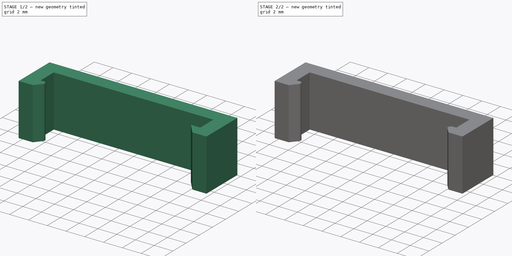
[diagram: build sequence overview — one tinted view per stage of 2, left to right]
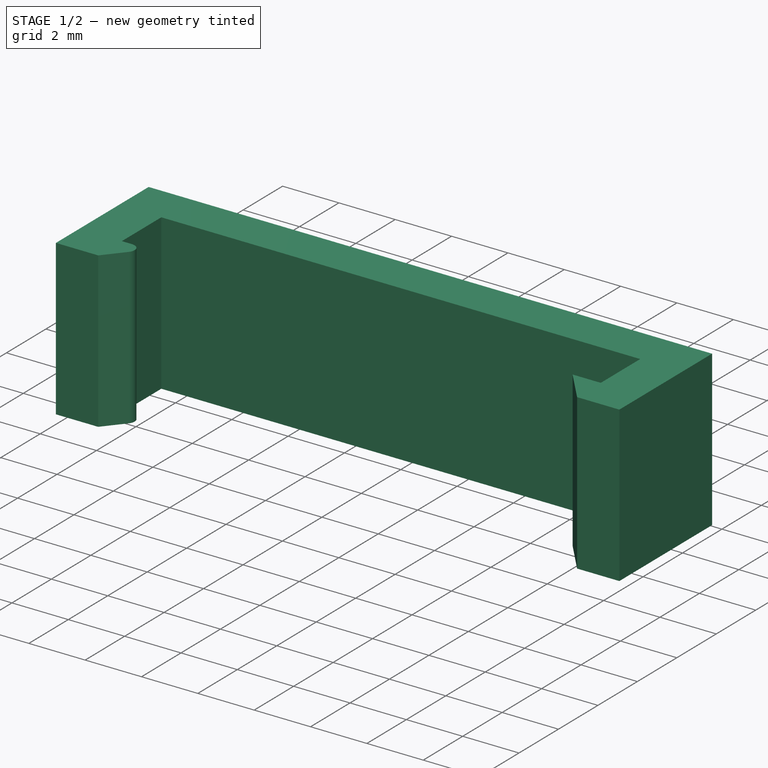
[diagram: stage 1 of 2 — iso view after this stage's code; geometry added in this stage tinted green]
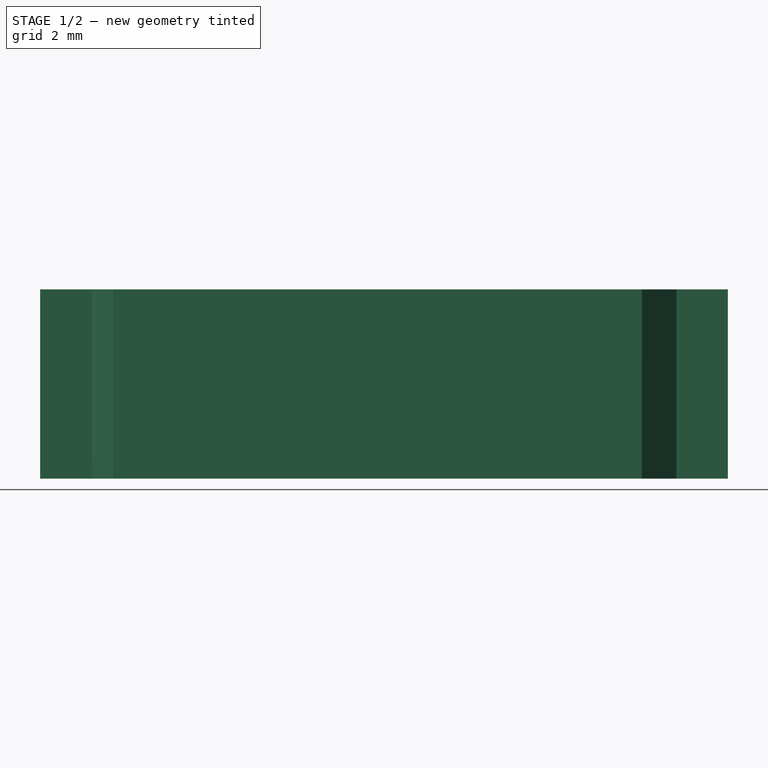
[diagram: stage 1 of 2 — front view after this stage's code; geometry added in this stage tinted green]
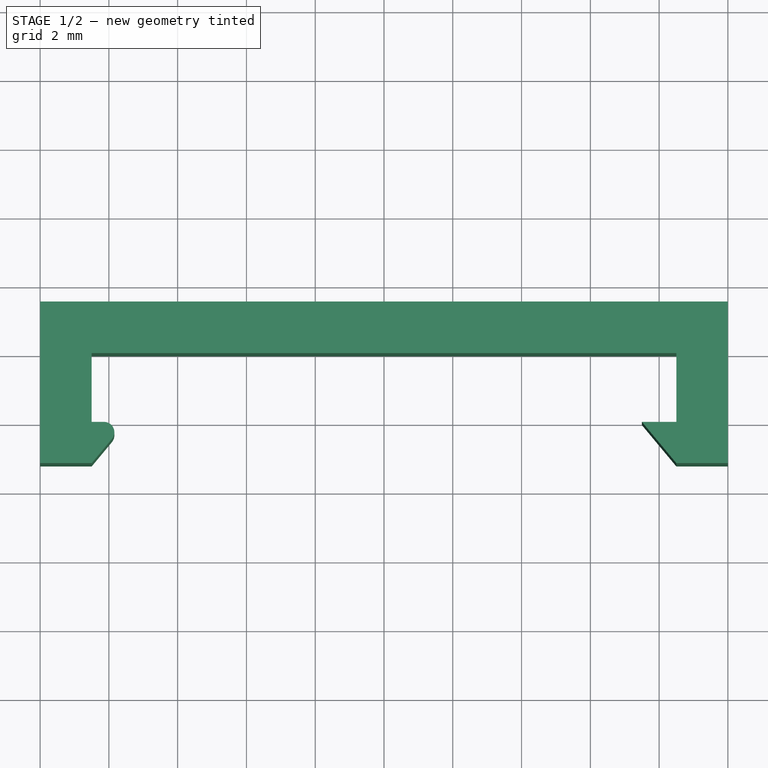
[diagram: stage 1 of 2 — top view after this stage's code; geometry added in this stage tinted green]
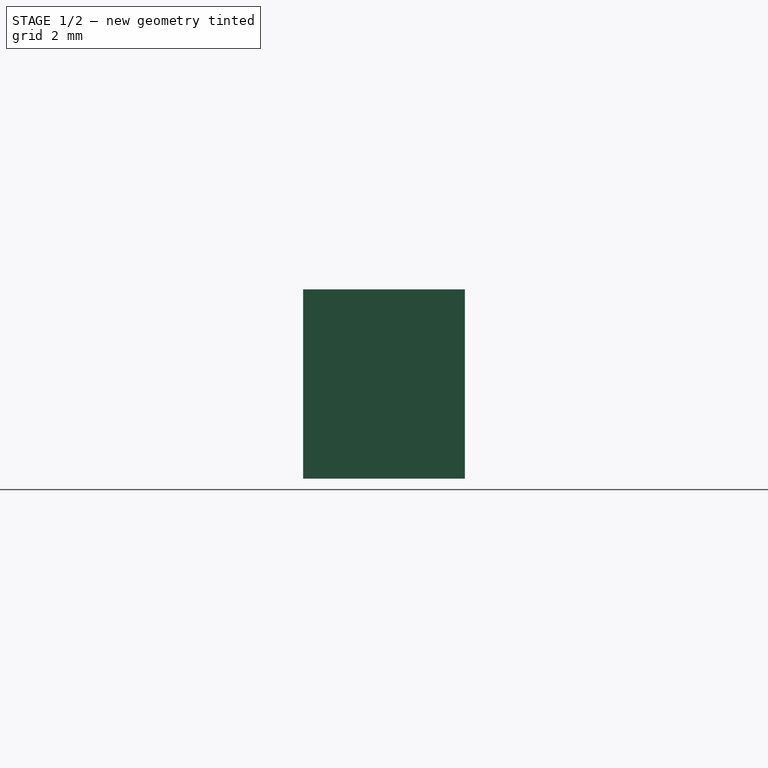
[diagram: stage 1 of 2 — right view after this stage's code; geometry added in this stage tinted green]
FCSTD DOCUMENT  (FreeCAD 0.17R13541 (Git))
Label: CableCareerCover
License: All rights reserved
LicenseURL: http://en.wikipedia.org/wiki/All_rights_reserved
objects: PartDesign::Fillet×2, Sketcher::SketchObject×1, PartDesign::Pad×1, PartDesign::Body×1
note: 6 computed .brp shape members not serialized (recipe doc carries the construction recipe); baked Part::Feature solids carry a one-line shape summary decoded from their .brp

FEATURE [Sketcher::SketchObject] Sketch
  MapMode = 5
  Support = -> [XY_Plane]
  sketch-geometry (12):
    g0: LineSegment StartX=-10 StartY=1.5 StartZ=0 EndX=10 EndY=1.5 EndZ=0
    g1: LineSegment StartX=10 StartY=1.5 StartZ=0 EndX=10 EndY=-3.2 EndZ=0
    g2: LineSegment StartX=10 StartY=-3.2 StartZ=0 EndX=8.5 EndY=-3.2 EndZ=0
    g3: LineSegment StartX=8.5 StartY=-3.2 StartZ=0 EndX=7.5 EndY=-2 EndZ=0
    g4: LineSegment StartX=7.5 StartY=-2 StartZ=0 EndX=8.5 EndY=-2 EndZ=0
    g5: LineSegment StartX=8.5 StartY=-2 StartZ=0 EndX=8.5 EndY=0 EndZ=0
    g6: LineSegment StartX=8.5 StartY=0 StartZ=0 EndX=-8.5 EndY=0 EndZ=0
    g7: LineSegment StartX=-8.5 StartY=0 StartZ=0 EndX=-8.5 EndY=-2 EndZ=0
    g8: LineSegment StartX=-8.5 StartY=-2 StartZ=0 EndX=-7.5 EndY=-2 EndZ=0
    g9: LineSegment StartX=-7.5 StartY=-2 StartZ=0 EndX=-8.5 EndY=-3.2 EndZ=0
    g10: LineSegment StartX=-8.5 StartY=-3.2 StartZ=0 EndX=-10 EndY=-3.2 EndZ=0
    g11: LineSegment StartX=-10 StartY=-3.2 StartZ=0 EndX=-10 EndY=1.5 EndZ=0
  constraints (36):
    c: Coincident(g0,g1)
    c: Coincident(g1,g2)
    c: Coincident(g2,g3)
    c: Coincident(g3,g4)
    c: Coincident(g4,g5)
    c: Coincident(g5,g6)
    c: Coincident(g6,g7)
    c: Coincident(g7,g8)
    c: Coincident(g8,g9)
    c: Coincident(g9,g10)
    c: Coincident(g10,g11)
    c: Coincident(g11,g0)
    c: Parallel(g0,g6)
    c: Parallel(g6,g8)
    c: Parallel(g8,g10)
    c: Parallel(g10,g4)
    c: Parallel(g4,g2)
    c: Parallel(g2,g-1)
    c: Parallel(g11,g7)
    c: Parallel(g7,g-2)
    c: Parallel(g-2,g5)
    c: Parallel(g5,g1)
    c: DistanceY(g7,g7) = 2
    c: DistanceY(g5,g5) = 2
    c: DistanceX(g0,g0) = 20
    c: DistanceY(g6,g0) = 1.5
    c: DistanceX(g8,g8) = 1
    c: DistanceX(g4,g4) = 1
    c: DistanceX(g0,g7) = 1.5
    c: DistanceX(g4,g0) = 1.5
    c: DistanceY(g1,g1) = 4.7
    c: DistanceY(g11,g11) = 4.7
    c: DistanceX(g10,g10) = 1.5
    c: DistanceX(g2,g2) = 1.5
    c: DistanceX(g0,g-1) = 10
    c: DistanceY(g-1,g0) = 1.5
FEATURE [PartDesign::Pad] Pad
  Length = 5.5
  Length2 = 100
  Profile = -> Sketch
  Type = 0
FEATURE [PartDesign::Fillet] Fillet
  Base = -> Pad [Edge26]
  BaseFeature = -> Pad
  Radius = 0.3
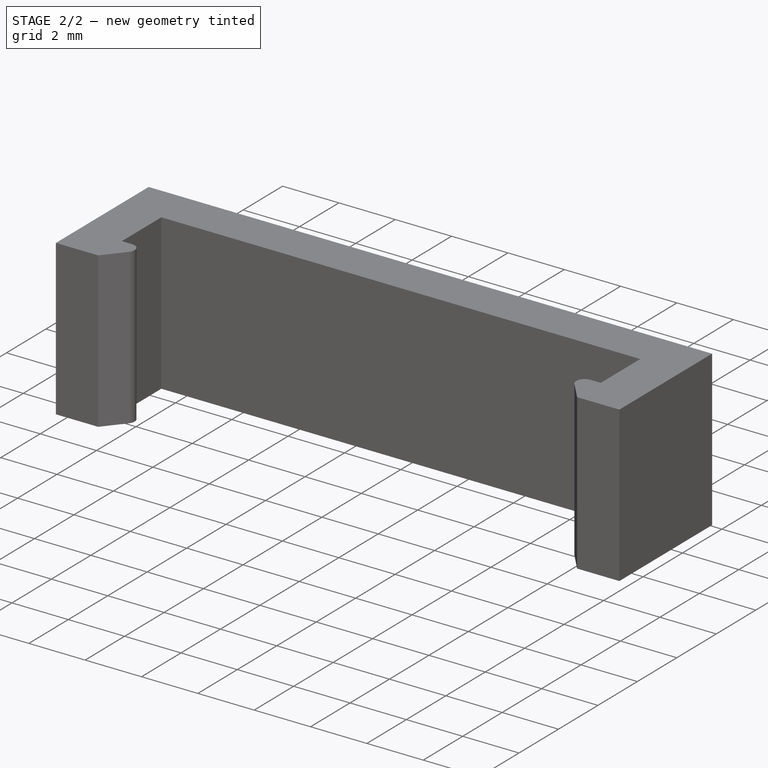
[diagram: stage 2 of 2 — iso view after this stage's code; geometry added in this stage tinted green]
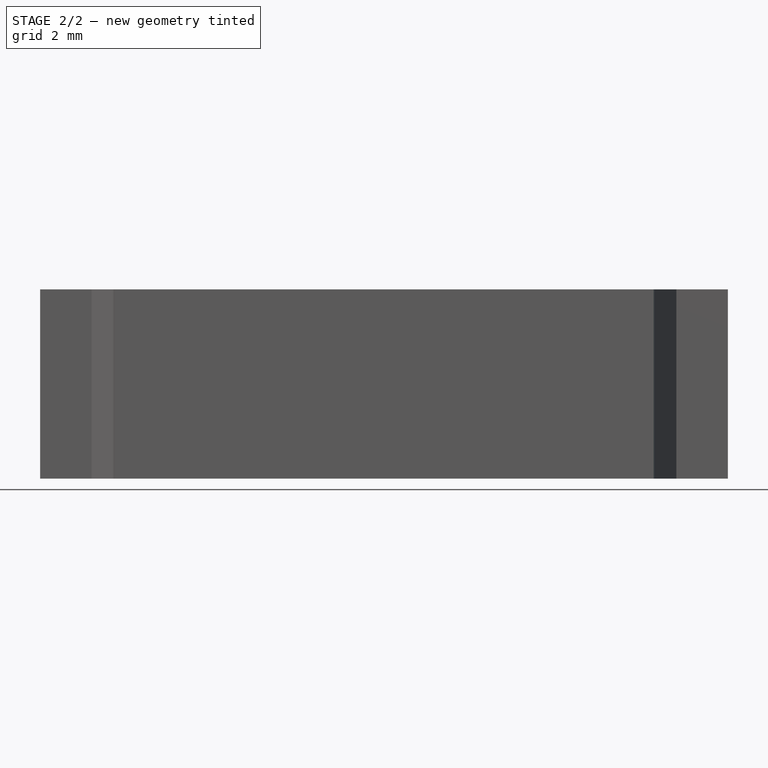
[diagram: stage 2 of 2 — front view after this stage's code; geometry added in this stage tinted green]
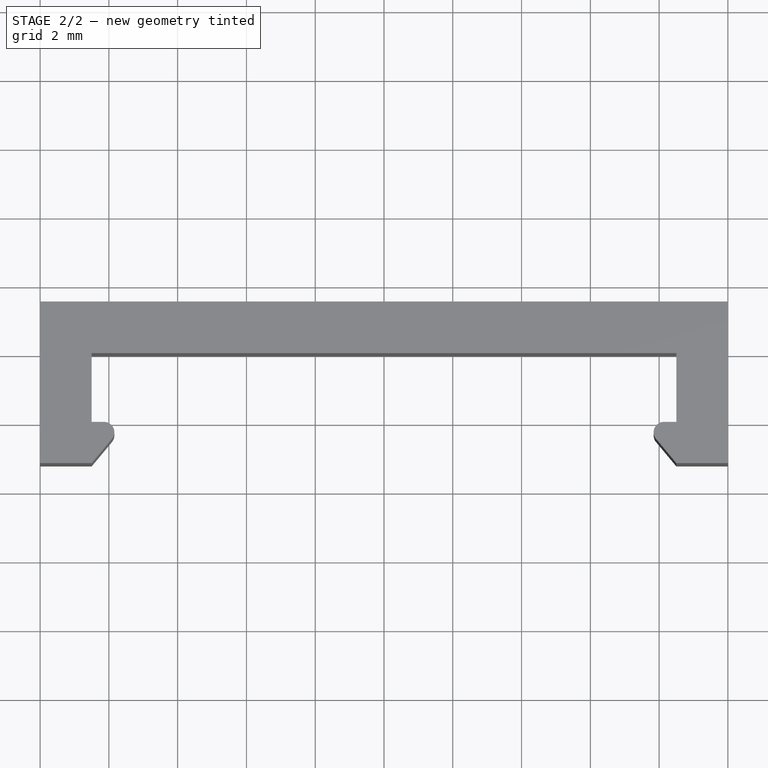
[diagram: stage 2 of 2 — top view after this stage's code; geometry added in this stage tinted green]
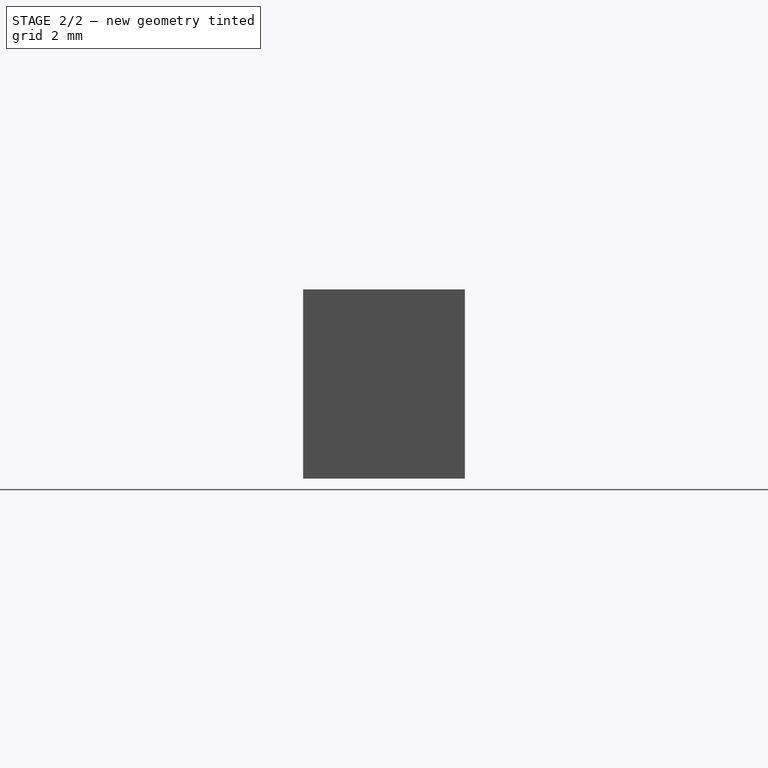
[diagram: stage 2 of 2 — right view after this stage's code; geometry added in this stage tinted green]
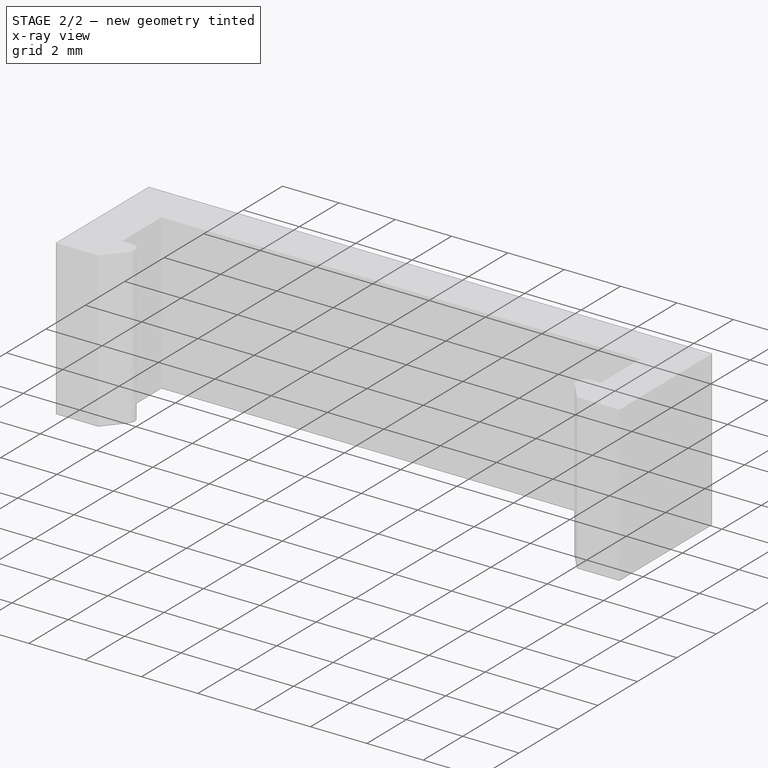
[diagram: stage 2 of 2 — x-ray composite at the iso view; earlier geometry ghosted, this stage's added geometry solid]
FEATURE [PartDesign::Fillet] Fillet001
  Base = -> Fillet [Edge36]
  BaseFeature = -> Fillet
  Radius = 0.3
FEATURE [PartDesign::Body] Body
  Group = -> [Sketch,Pad,Fillet,Fillet001]
  Origin = -> Origin
  Tip = -> Fillet001
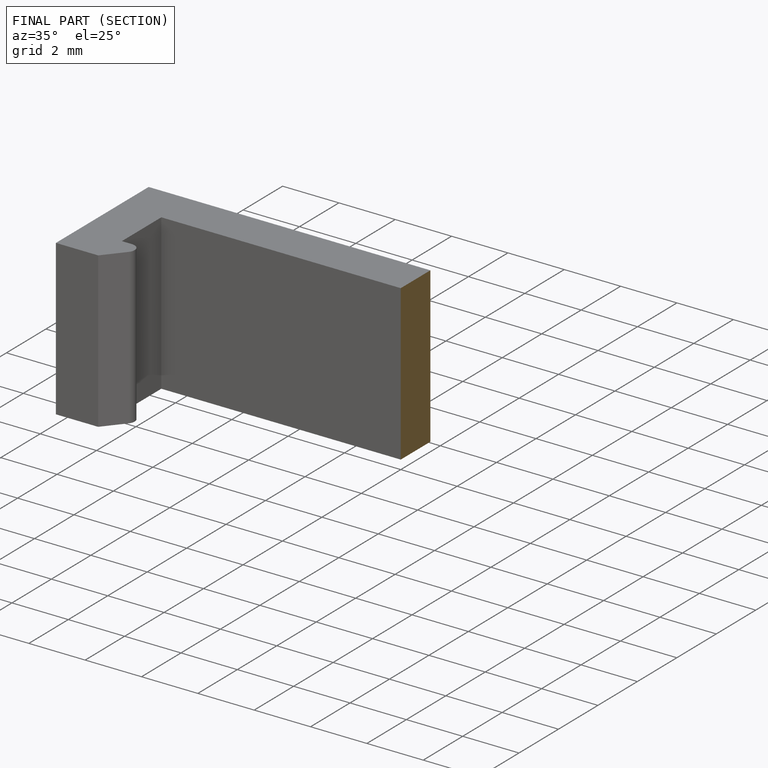
[diagram: finished part — half-section view (interior)]
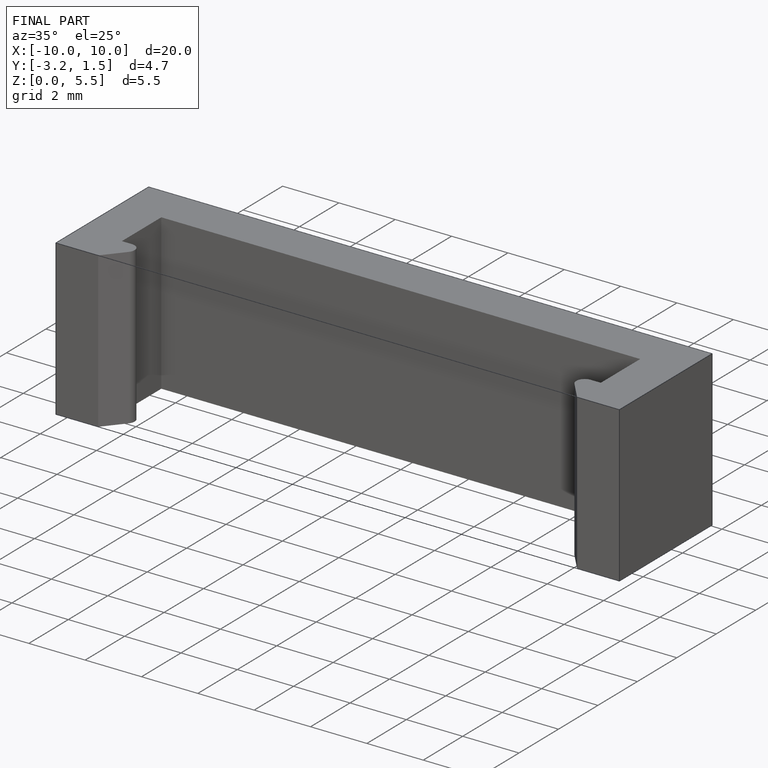
[diagram: finished part — iso view with bounding-box wireframe]
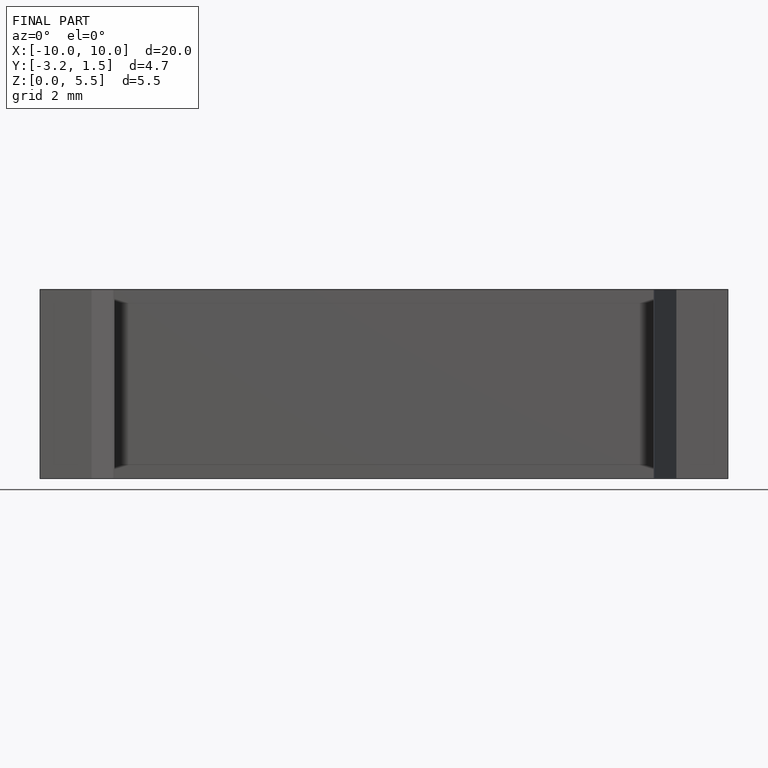
[diagram: finished part — front view with bounding-box wireframe]
